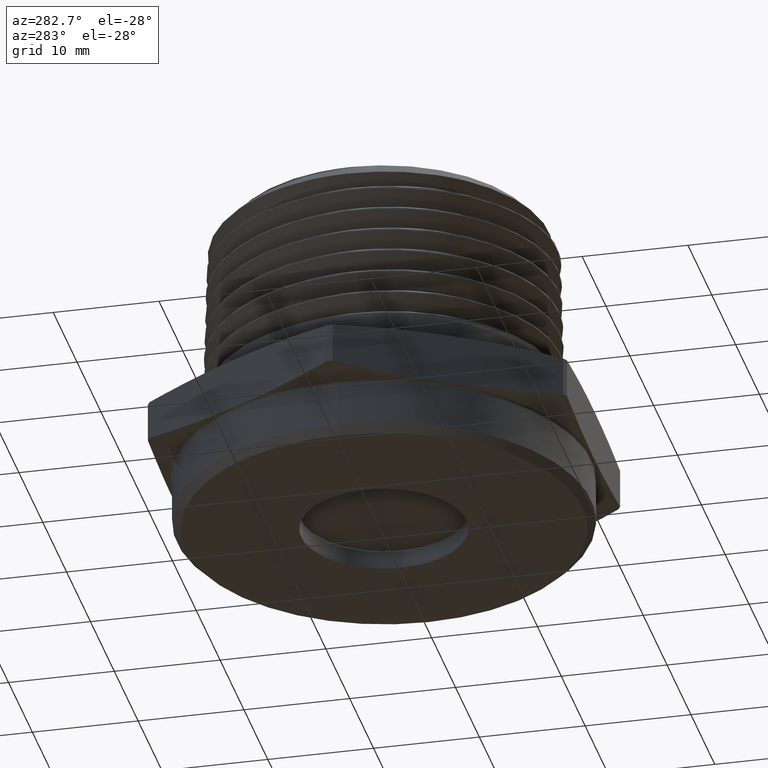
[diagram: clean part render]
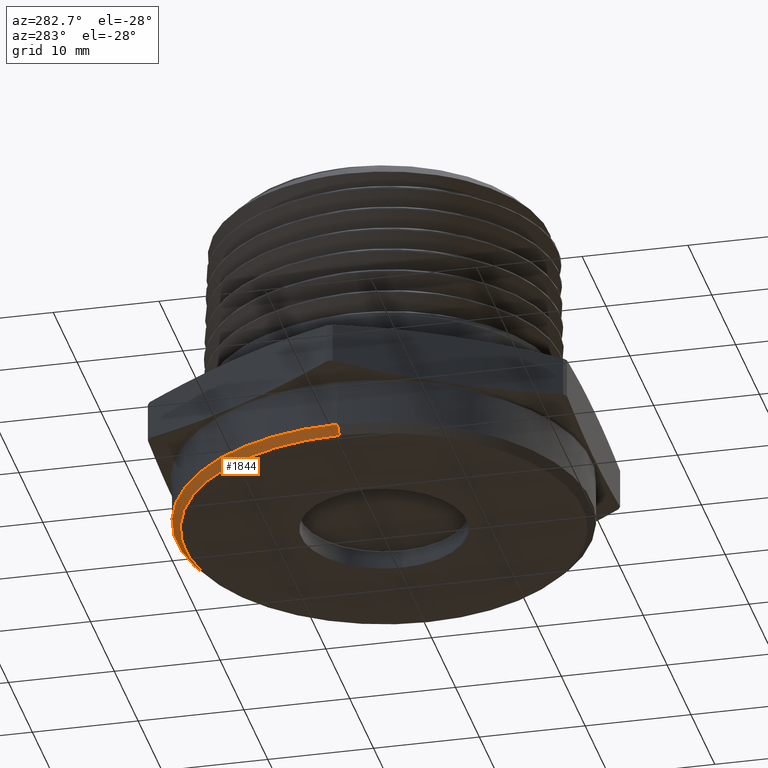
[diagram: same view with one face highlighted and labeled with its STEP entity id]
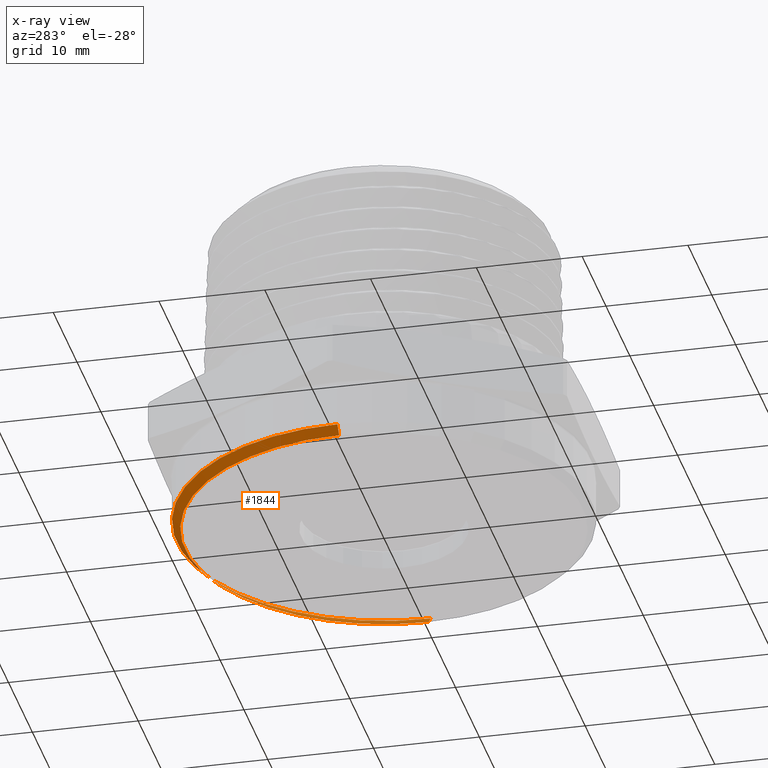
[diagram: x-ray of the same camera — body ghosted, the highlighted face saturated]
A machine part, auxiliary view. The second image highlights one B-rep face of the part: STEP entity #1844.
The next image is the same camera in x-ray: the body ghosted, the highlighted face saturated — about 0% of this face is hidden behind the body in this view.
In plain terms, the highlighted conical surface has half-angle 45 deg.
Its self-contained STEP definition (entity closure, byte-faithful):
#50 = AXIS2_PLACEMENT_3D ( 'NONE', #2549, #2550, #2551 ) ;
#1844 = ADVANCED_FACE ( 'NONE', ( #5677 ), #5687, .T. ) ;
#2544 = CARTESIAN_POINT ( 'NONE',  ( 0.7399999999999999900, 0.0000000000000000000, -0.2000000000000000100 ) ) ;
#2545 = DIRECTION ( 'NONE',  ( 0.7071067811865443500, 0.0000000000000000000, 0.7071067811865507900 ) ) ;
#2549 = CARTESIAN_POINT ( 'NONE',  ( 0.0000000000000000000, 0.0000000000000000000, -0.1699999999999997900 ) ) ;
#2550 = DIRECTION ( 'NONE',  ( 0.0000000000000000000, 0.0000000000000000000, 1.000000000000000000 ) ) ;
#2551 = DIRECTION ( 'NONE',  ( -1.000000000000000000, 0.0000000000000000000, 0.0000000000000000000 ) ) ;
#2611 = CARTESIAN_POINT ( 'NONE',  ( -0.7399999999999999900, 9.246083333562517200E-017, -0.2000000000000000100 ) ) ;
#2629 = CARTESIAN_POINT ( 'NONE',  ( 0.7399999999999999900, 0.0000000000000000000, -0.2000000000000000100 ) ) ;
#2631 = CARTESIAN_POINT ( 'NONE',  ( 0.7700000000000000200, 0.0000000000000000000, -0.1699999999999997900 ) ) ;
#2632 = CARTESIAN_POINT ( 'NONE',  ( -0.7700000000000000200, 9.429780353434618500E-017, -0.1699999999999997900 ) ) ;
#4577 = DIRECTION ( 'NONE',  ( -0.7071067811865443500, 8.659560562354895900E-017, 0.7071067811865507900 ) ) ;
#4581 = CARTESIAN_POINT ( 'NONE',  ( -0.7399999999999999900, 9.062386313690414600E-017, -0.2000000000000000100 ) ) ;
#4582 = CARTESIAN_POINT ( 'NONE',  ( 0.0000000000000000000, 0.0000000000000000000, -0.2000000000000000100 ) ) ;
#4583 = DIRECTION ( 'NONE',  ( 0.0000000000000000000, 0.0000000000000000000, -1.000000000000000000 ) ) ;
#4584 = DIRECTION ( 'NONE',  ( -1.000000000000000000, 0.0000000000000000000, 0.0000000000000000000 ) ) ;
#5278 = ORIENTED_EDGE ( 'NONE', *, *, #5318, .F. ) ;
#5279 = ORIENTED_EDGE ( 'NONE', *, *, #5319, .T. ) ;
#5280 = ORIENTED_EDGE ( 'NONE', *, *, #5385, .F. ) ;
#5281 = ORIENTED_EDGE ( 'NONE', *, *, #5386, .F. ) ;
#5318 = EDGE_CURVE ( 'NONE', #5593, #5613, #5499, .T. ) ;
#5319 = EDGE_CURVE ( 'NONE', #5593, #5616, #5504, .T. ) ;
#5385 = EDGE_CURVE ( 'NONE', #5615, #5616, #5541, .T. ) ;
#5386 = EDGE_CURVE ( 'NONE', #5613, #5615, #5543, .T. ) ;
#5499 = CIRCLE ( 'NONE', #6564, 0.7399999999999999900 ) ;
#5504 = LINE ( 'NONE', #4581, #5506 ) ;
#5506 = VECTOR ( 'NONE', #4577, 39.37007874015748100 ) ;
#5541 = CIRCLE ( 'NONE', #50, 0.7700000000000000200 ) ;
#5543 = LINE ( 'NONE', #2544, #5545 ) ;
#5545 = VECTOR ( 'NONE', #2545, 39.37007874015748100 ) ;
#5593 = VERTEX_POINT ( 'NONE', #2611 ) ;
#5613 = VERTEX_POINT ( 'NONE', #2629 ) ;
#5615 = VERTEX_POINT ( 'NONE', #2631 ) ;
#5616 = VERTEX_POINT ( 'NONE', #2632 ) ;
#5677 = FACE_OUTER_BOUND ( 'NONE', #6085, .T. ) ;
#5687 = CONICAL_SURFACE ( 'NONE', #6523, 0.7399999999999999900, 0.7853981633974437300 ) ;
#6085 = EDGE_LOOP ( 'NONE', ( #5278, #5279, #5280, #5281 ) ) ;
#6523 = AXIS2_PLACEMENT_3D ( 'NONE', #6712, #6713, #6711 ) ;
#6564 = AXIS2_PLACEMENT_3D ( 'NONE', #4582, #4583, #4584 ) ;
#6711 = DIRECTION ( 'NONE',  ( 1.000000000000000000, 0.0000000000000000000, 0.0000000000000000000 ) ) ;
#6712 = CARTESIAN_POINT ( 'NONE',  ( 0.0000000000000000000, 0.0000000000000000000, -0.2000000000000000100 ) ) ;
#6713 = DIRECTION ( 'NONE',  ( 0.0000000000000000000, 0.0000000000000000000, 1.000000000000000000 ) ) ;